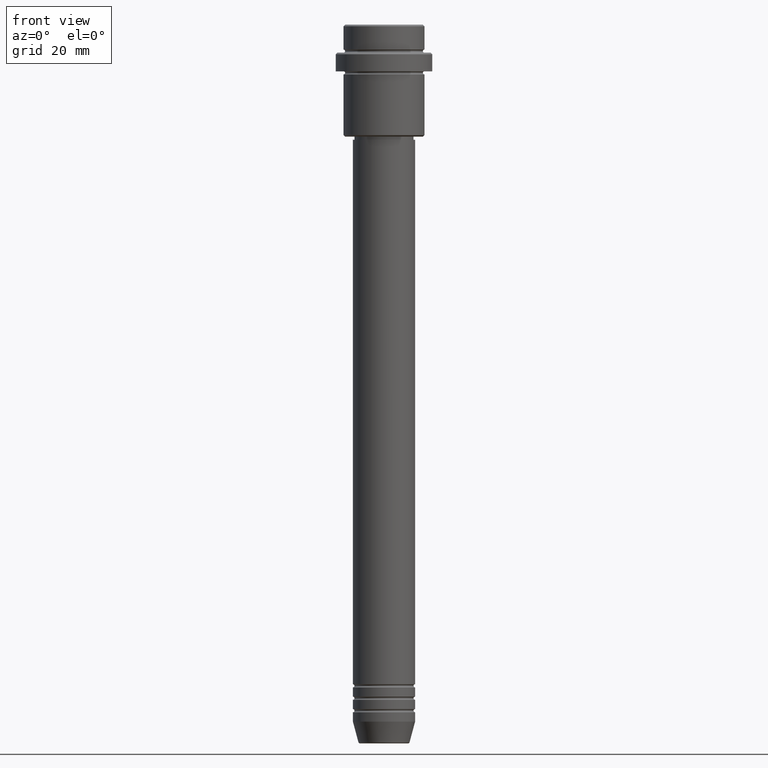
[diagram: clean part render]
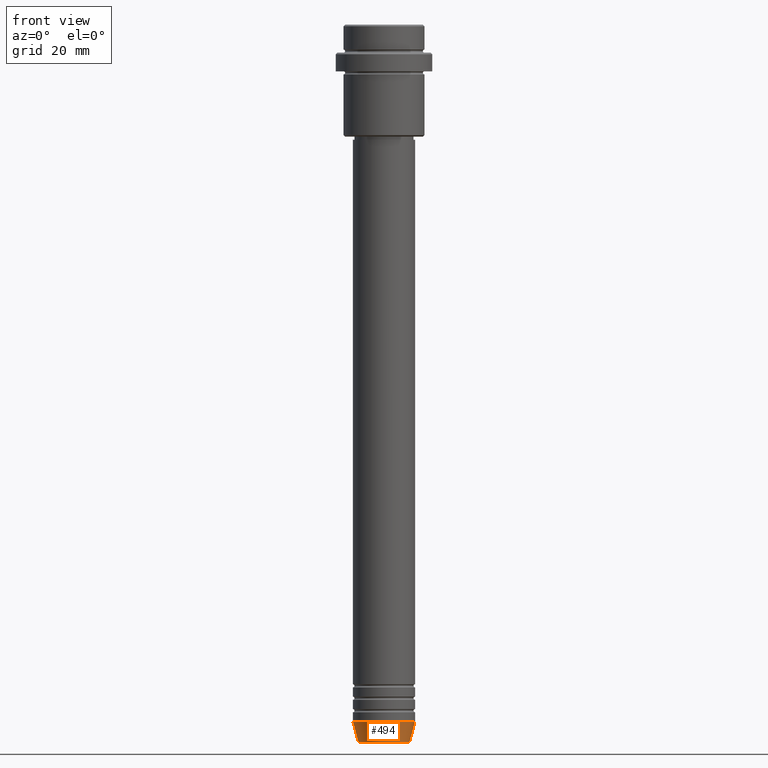
[diagram: same view with one face highlighted and labeled with its STEP entity id]
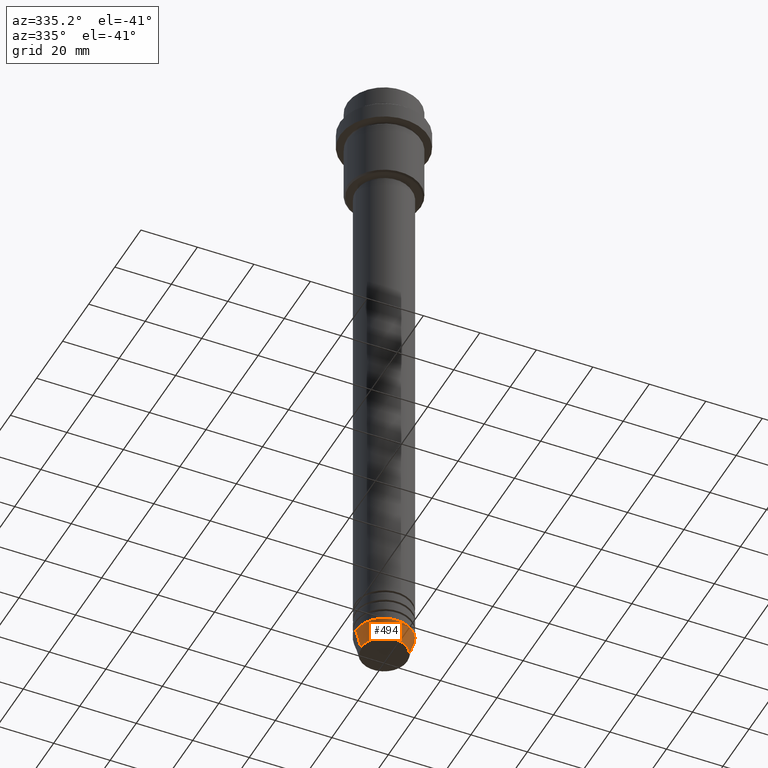
[diagram: same view with one face highlighted and labeled with its STEP entity id]
A machine part, front view. The second image highlights one B-rep face of the part: STEP entity #494.
A second angle (auxiliary view) of the same face is appended — the face is thin or edge-on in the first view.
In plain terms, the highlighted conical surface has half-angle 15 deg.
Its self-contained STEP definition (entity closure, byte-faithful):
#44 = CARTESIAN_POINT ( 'NONE',  ( 10.00000000000000000, 0.000000000000000000, -224.0000000000000284 ) ) ;
#98 = DIRECTION ( 'NONE',  ( 0.2588190451025205174, 0.000000000000000000, 0.9659258262890684232 ) ) ;
#128 = DIRECTION ( 'NONE',  ( -0.000000000000000000, -0.000000000000000000, 1.000000000000000000 ) ) ;
#131 = EDGE_CURVE ( 'NONE', #1321, #1187, #401, .T. ) ;
#186 = DIRECTION ( 'NONE',  ( -0.000000000000000000, -0.000000000000000000, 1.000000000000000000 ) ) ;
#207 = CARTESIAN_POINT ( 'NONE',  ( 0.000000000000000000, 0.000000000000000000, -224.0000000000000284 ) ) ;
#245 = AXIS2_PLACEMENT_3D ( 'NONE', #504, #186, #377 ) ;
#295 = ORIENTED_EDGE ( 'NONE', *, *, #414, .T. ) ;
#304 = LINE ( 'NONE', #325, #774 ) ;
#309 = ORIENTED_EDGE ( 'NONE', *, *, #1260, .F. ) ;
#325 = CARTESIAN_POINT ( 'NONE',  ( -10.00000000000000000, 1.224646799147353256E-15, -224.0000000000000284 ) ) ;
#341 = CIRCLE ( 'NONE', #245, 8.223655072137193045 ) ;
#377 = DIRECTION ( 'NONE',  ( 1.000000000000000000, 0.000000000000000000, 0.000000000000000000 ) ) ;
#379 = AXIS2_PLACEMENT_3D ( 'NONE', #1124, #128, #1107 ) ;
#401 = CIRCLE ( 'NONE', #379, 10.00000000000000000 ) ;
#414 = EDGE_CURVE ( 'NONE', #961, #1187, #1066, .T. ) ;
#418 = VERTEX_POINT ( 'NONE', #1170 ) ;
#494 = ADVANCED_FACE ( 'NONE', ( #508 ), #1147, .T. ) ;
#504 = CARTESIAN_POINT ( 'NONE',  ( 0.000000000000000000, 0.000000000000000000, -230.6294095225513274 ) ) ;
#508 = FACE_OUTER_BOUND ( 'NONE', #985, .T. ) ;
#524 = AXIS2_PLACEMENT_3D ( 'NONE', #207, #1098, #547 ) ;
#547 = DIRECTION ( 'NONE',  ( 1.000000000000000000, 0.000000000000000000, 0.000000000000000000 ) ) ;
#750 = ORIENTED_EDGE ( 'NONE', *, *, #131, .F. ) ;
#774 = VECTOR ( 'NONE', #1075, 1000.000000000000114 ) ;
#784 = CARTESIAN_POINT ( 'NONE',  ( 10.00000000000000000, 0.000000000000000000, -224.0000000000000284 ) ) ;
#789 = EDGE_CURVE ( 'NONE', #418, #961, #341, .T. ) ;
#961 = VERTEX_POINT ( 'NONE', #1231 ) ;
#985 = EDGE_LOOP ( 'NONE', ( #309, #1313, #295, #750 ) ) ;
#986 = CARTESIAN_POINT ( 'NONE',  ( -10.00000000000000000, 1.224646799147353256E-15, -224.0000000000000284 ) ) ;
#1034 = VECTOR ( 'NONE', #98, 1000.000000000000114 ) ;
#1066 = LINE ( 'NONE', #784, #1034 ) ;
#1075 = DIRECTION ( 'NONE',  ( -0.2588190451025205174, 3.169619151431761243E-17, 0.9659258262890684232 ) ) ;
#1098 = DIRECTION ( 'NONE',  ( -0.000000000000000000, -0.000000000000000000, 1.000000000000000000 ) ) ;
#1107 = DIRECTION ( 'NONE',  ( 1.000000000000000000, 0.000000000000000000, 0.000000000000000000 ) ) ;
#1124 = CARTESIAN_POINT ( 'NONE',  ( 0.000000000000000000, 0.000000000000000000, -224.0000000000000284 ) ) ;
#1147 = CONICAL_SURFACE ( 'NONE', #524, 10.00000000000000000, 0.2617993877991491303 ) ;
#1170 = CARTESIAN_POINT ( 'NONE',  ( -8.223655072137193045, 1.115877042642912251E-15, -230.6294095225513274 ) ) ;
#1187 = VERTEX_POINT ( 'NONE', #44 ) ;
#1231 = CARTESIAN_POINT ( 'NONE',  ( 8.223655072137193045, 0.000000000000000000, -230.6294095225513274 ) ) ;
#1260 = EDGE_CURVE ( 'NONE', #418, #1321, #304, .T. ) ;
#1313 = ORIENTED_EDGE ( 'NONE', *, *, #789, .T. ) ;
#1321 = VERTEX_POINT ( 'NONE', #986 ) ;